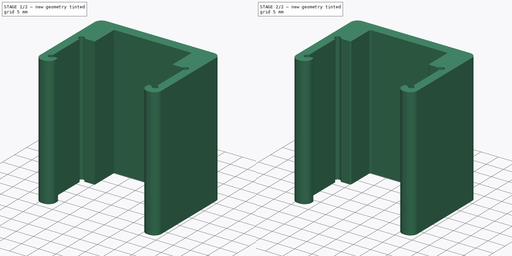
[diagram: build sequence overview — one tinted view per stage of 2, left to right]
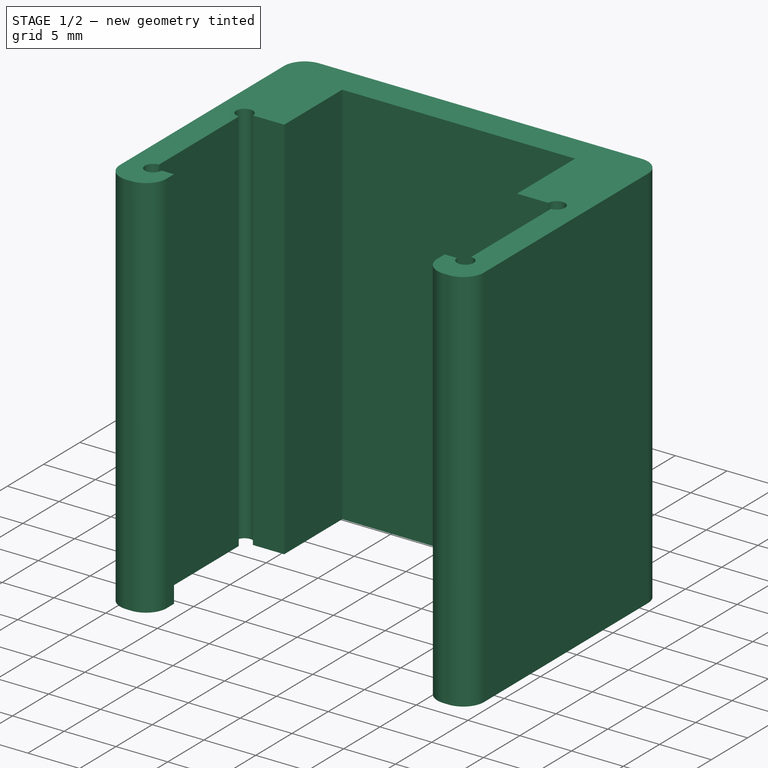
[diagram: stage 1 of 2 — iso view after this stage's code; geometry added in this stage tinted green]
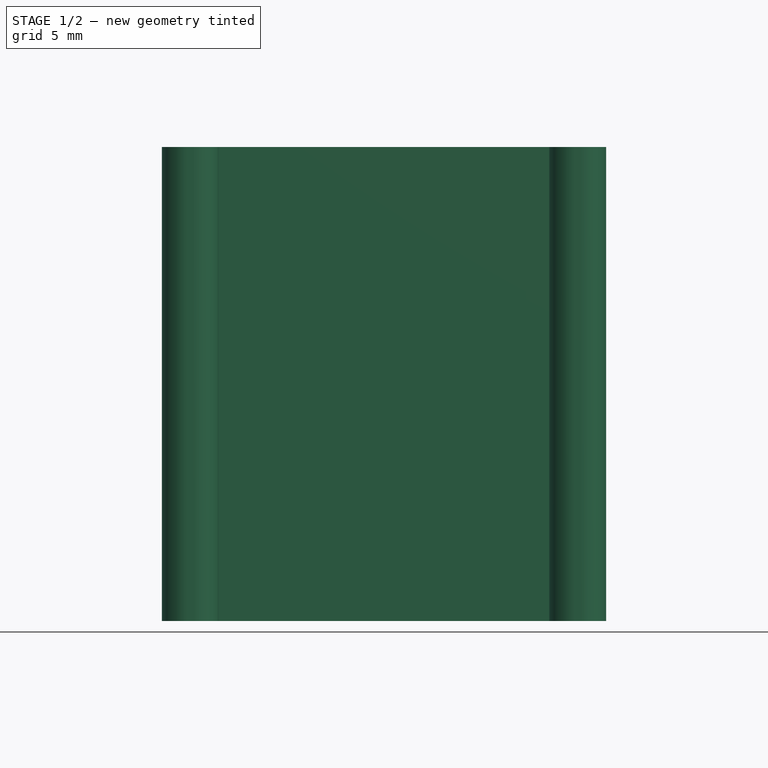
[diagram: stage 1 of 2 — front view after this stage's code; geometry added in this stage tinted green]
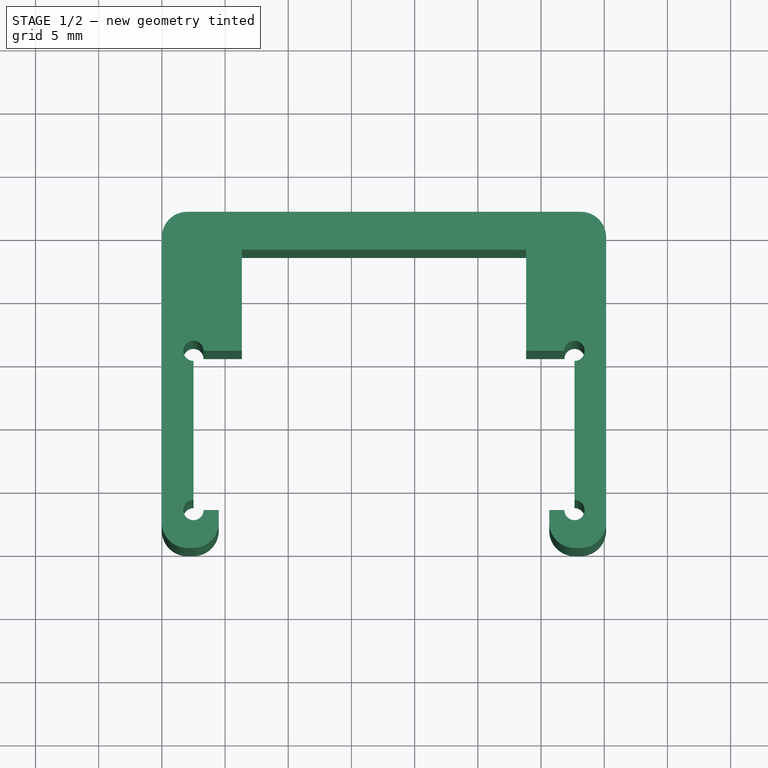
[diagram: stage 1 of 2 — top view after this stage's code; geometry added in this stage tinted green]
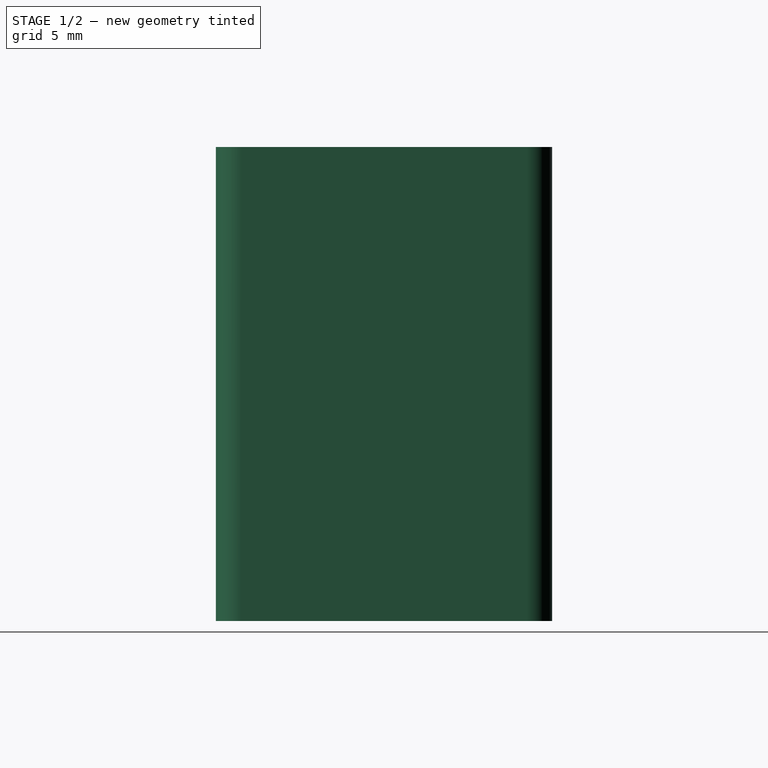
[diagram: stage 1 of 2 — right view after this stage's code; geometry added in this stage tinted green]
FCSTD DOCUMENT  (FreeCAD 0.18R4 (GitTag))
Label: clip
License: All rights reserved
LicenseURL: http://en.wikipedia.org/wiki/All_rights_reserved
objects: PartDesign::Fillet×2, Sketcher::SketchObject×1, PartDesign::Pad×1, PartDesign::Body×1, Spreadsheet::Sheet×1
note: 6 computed .brp shape members not serialized (recipe doc carries the construction recipe); baked Part::Feature solids carry a one-line shape summary decoded from their .brp

FEATURE [Sketcher::SketchObject] Sketch
  MapMode = 5
  Support = -> [XY_Plane]
  expr: Constraints[49] = Params.HEIGHT
  expr: Constraints[37] = Constraints.WALL + 0.5mm
  expr: Constraints.WALL = Params.WALL
  expr: Constraints[41] = 3.75mm + Params.GAP_XY / 2
  expr: Constraints[48] = 30mm + Params.GAP_XY
  expr: Constraints[43] = Params.WALL + 0.5mm
  expr: Constraints[36] = Constraints.WALL
  sketch-geometry (31):
    g0: LineSegment StartX=0 StartY=0 StartZ=0 EndX=4.5 EndY=0 EndZ=0
    g1: LineSegment StartX=4.5 StartY=0 StartZ=0 EndX=4.5 EndY=3 EndZ=0
    g2: LineSegment [constr] StartX=4.5 StartY=3 StartZ=0 EndX=2.5 EndY=3 EndZ=0
    g3: LineSegment [constr] StartX=2.5 StartY=3 StartZ=0 EndX=2.5 EndY=15.6 EndZ=0
    g4: LineSegment [constr] StartX=2.5 StartY=15.6 StartZ=0 EndX=6.325 EndY=15.6 EndZ=0
    g5: LineSegment StartX=6.325 StartY=15.6 StartZ=0 EndX=6.325 EndY=23.6 EndZ=0
    g6: LineSegment StartX=6.325 StartY=23.6 StartZ=0 EndX=28.825 EndY=23.6 EndZ=0
    g7: LineSegment StartX=28.825 StartY=23.6 StartZ=0 EndX=28.825 EndY=15.6 EndZ=0
    g8: LineSegment [constr] StartX=28.825 StartY=15.6 StartZ=0 EndX=32.65 EndY=15.6 EndZ=0
    g9: LineSegment [constr] StartX=32.65 StartY=15.6 StartZ=0 EndX=32.65 EndY=3 EndZ=0
    g10: LineSegment [constr] StartX=32.65 StartY=3 StartZ=0 EndX=30.65 EndY=3 EndZ=0
    g11: LineSegment StartX=30.65 StartY=3 StartZ=0 EndX=30.65 EndY=4e-16 EndZ=0
    g12: LineSegment StartX=30.65 StartY=4e-16 StartZ=0 EndX=35.15 EndY=4e-16 EndZ=0
    g13: LineSegment StartX=35.15 StartY=4e-16 StartZ=0 EndX=35.15 EndY=26.6 EndZ=0
    g14: LineSegment StartX=35.15 StartY=26.6 StartZ=0 EndX=0 EndY=26.6 EndZ=0
    g15: LineSegment StartX=0 StartY=26.6 StartZ=0 EndX=0 EndY=0 EndZ=0
    g16: LineSegment [constr] StartX=2.5 StartY=15.6 StartZ=0 EndX=0 EndY=15.6 EndZ=0
    g17: Circle [constr] CenterX=32.65 CenterY=15.6 CenterZ=0 NormalX=0 NormalY=0 NormalZ=1 AngleXU=0 Radius=0.8
    g18: Circle [constr] CenterX=32.65 CenterY=3 CenterZ=0 NormalX=0 NormalY=0 NormalZ=1 AngleXU=0 Radius=0.8
    g19: Circle [constr] CenterX=2.5 CenterY=15.6 CenterZ=0 NormalX=0 NormalY=0 NormalZ=1 AngleXU=0 Radius=0.8
    g20: Circle [constr] CenterX=2.5 CenterY=3 CenterZ=0 NormalX=0 NormalY=0 NormalZ=1 AngleXU=0 Radius=0.8
    g21: LineSegment StartX=28.825 StartY=15.6 StartZ=0 EndX=31.85 EndY=15.6 EndZ=0
    g22: LineSegment StartX=30.65 StartY=3 StartZ=0 EndX=31.85 EndY=3 EndZ=0
    g23: LineSegment StartX=6.325 StartY=15.6 StartZ=0 EndX=3.3 EndY=15.6 EndZ=0
    g24: LineSegment StartX=4.5 StartY=3 StartZ=0 EndX=3.3 EndY=3 EndZ=0
    g25: LineSegment StartX=2.5 StartY=14.8 StartZ=0 EndX=2.5 EndY=3.8 EndZ=0
    g26: LineSegment StartX=32.65 StartY=14.8 StartZ=0 EndX=32.65 EndY=3.8 EndZ=0
    g27: ArcOfCircle CenterX=32.65 CenterY=15.6 CenterZ=0 NormalX=0 NormalY=0 NormalZ=1 AngleXU=0 Radius=0.8 StartAngle=4.71239 EndAngle=9.42478
    g28: ArcOfCircle CenterX=32.65 CenterY=3 CenterZ=0 NormalX=0 NormalY=0 NormalZ=1 AngleXU=0 Radius=0.8 StartAngle=3.14159 EndAngle=7.85398
    g29: ArcOfCircle CenterX=2.5 CenterY=15.6 CenterZ=0 NormalX=0 NormalY=0 NormalZ=1 AngleXU=0 Radius=0.8 StartAngle=0 EndAngle=4.71239
    g30: ArcOfCircle CenterX=2.5 CenterY=3 CenterZ=0 NormalX=0 NormalY=0 NormalZ=1 AngleXU=0 Radius=0.8 StartAngle=1.5708 EndAngle=6.28319
  constraints (86):
    c: Horizontal(g0)
    c: Coincident(g0,g1)
    c: Vertical(g1)
    c: Coincident(g1,g2)
    c: Horizontal(g2)
    c: Coincident(g2,g3)
    c: Vertical(g3)
    c: Coincident(g3,g4)
    c: Coincident(g4,g5)
    c: Vertical(g5)
    c: Coincident(g5,g6)
    c: Horizontal(g6)
    c: Coincident(g6,g7)
    c: Vertical(g7)
    c: Coincident(g7,g8)
    c: Coincident(g8,g9)
    c: Vertical(g9)
    c: Coincident(g9,g10)
    c: Horizontal(g10)
    c: Coincident(g10,g11)
    c: Vertical(g11)
    c: Coincident(g11,g12)
    c: Horizontal(g12)
    c: Coincident(g12,g13)
    c: Vertical(g13)
    c: Coincident(g13,g14)
    c: Horizontal(g14)
    c: Coincident(g14,g15)
    c: Coincident(g15,g0)
    c: Coincident(g16,g3)
    c: PointOnObject(g16,g15)
    c: Horizontal(g16)
    c: DistanceX(g16,g16) = 2.5  'WALL'
    c: Horizontal(g4)
    c: Vertical(g15)
    c: Horizontal(g8)
    c: DistanceX(g8,g13) = 2.5
    c: DistanceY(g5,g14) = 3
    c: Equal(g7,g5)
    c: DistanceY(g5,g5) = 8
    c: Equal(g4,g8)
    c: DistanceX(g4,g4) = 3.825
    c: Equal(g1,g11)
    c: DistanceY(g1,g1) = 3
    c: Equal(g2,g10)
    c: DistanceX(g2,g2) = 2
    c: Equal(g3,g9)
    c: Coincident(g0,g-1)
    c: DistanceX(g3,g8) = 30.15
    c: DistanceY(g3,g3) = 12.6
    c: Coincident(g17,g8)
    c: Coincident(g18,g9)
    c: Coincident(g19,g3)
    c: Coincident(g20,g2)
    c: Radius(g19) = 0.8
    c: Equal(g19,g20)
    c: Equal(g17,g18)
    c: Equal(g17,g19)
    c: Coincident(g21,g7)
    c: PointOnObject(g21,g17)
    c: Horizontal(g21)
    c: Coincident(g22,g11)
    c: PointOnObject(g22,g18)
    c: Horizontal(g22)
    c: Coincident(g23,g5)
    c: PointOnObject(g23,g19)
    c: Horizontal(g23)
    c: Coincident(g24,g1)
    c: PointOnObject(g24,g20)
    c: Horizontal(g24)
    c: Vertical(g25)
    c: PointOnObject(g25,g3)
    c: Vertical(g26)
    c: Coincident(g27,g8)
    c: Coincident(g27,g26)
    c: Coincident(g27,g21)
    c: Coincident(g28,g9)
    c: Coincident(g28,g22)
    c: Coincident(g28,g26)
    c: Coincident(g29,g3)
    c: Coincident(g29,g25)
    c: Coincident(g29,g23)
    c: Coincident(g30,g2)
    c: Coincident(g30,g24)
    c: Coincident(g30,g25)
    c: PointOnObject(g26,g9)
FEATURE [PartDesign::Pad] Pad
  Length = 37.5
  Length2 = 100
  Profile = -> Sketch
  Type = 0
  expr: Length = Params.DEPTH
FEATURE [PartDesign::Fillet] Fillet  label="OuterFillets"
  Base = -> Pad [Edge11,Edge14,Edge17,Edge2,Edge5,Edge8]
  BaseFeature = -> Pad
  Radius = 2
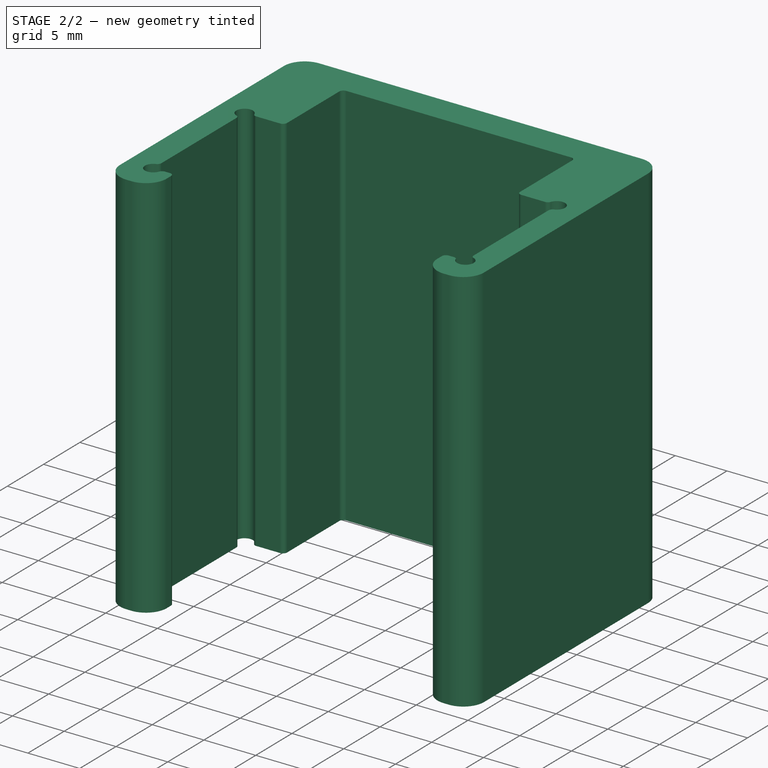
[diagram: stage 2 of 2 — iso view after this stage's code; geometry added in this stage tinted green]
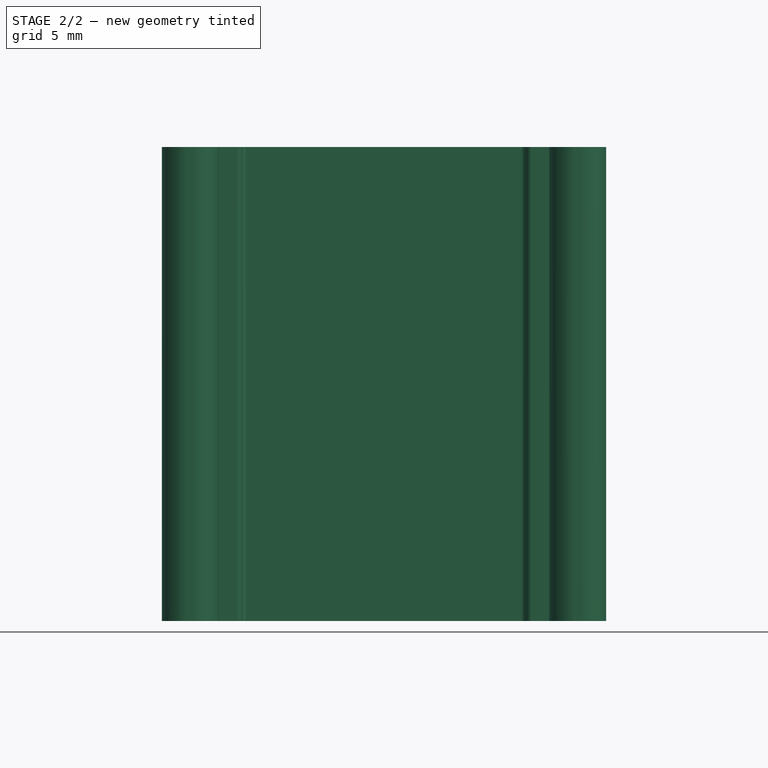
[diagram: stage 2 of 2 — front view after this stage's code; geometry added in this stage tinted green]
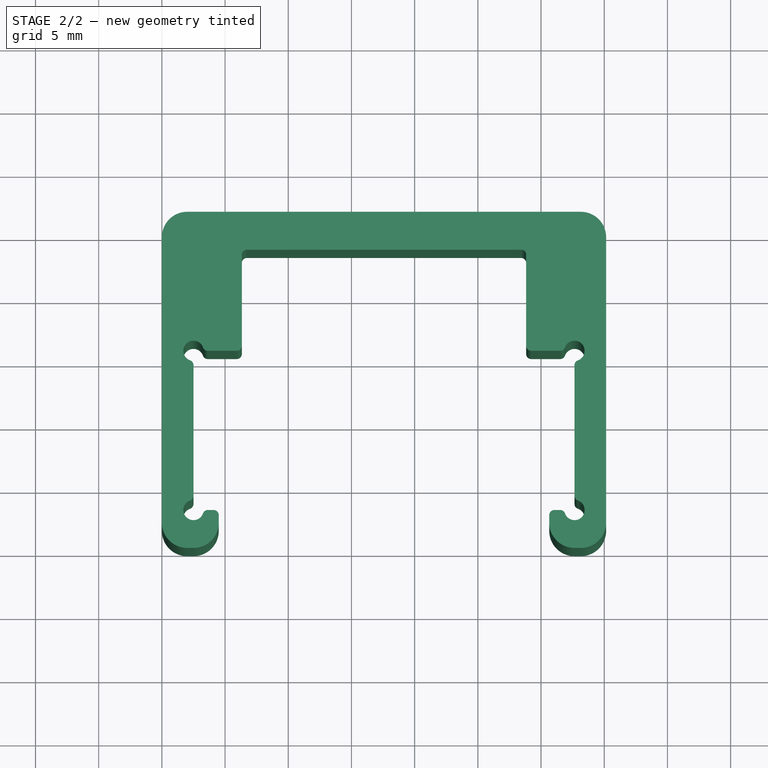
[diagram: stage 2 of 2 — top view after this stage's code; geometry added in this stage tinted green]
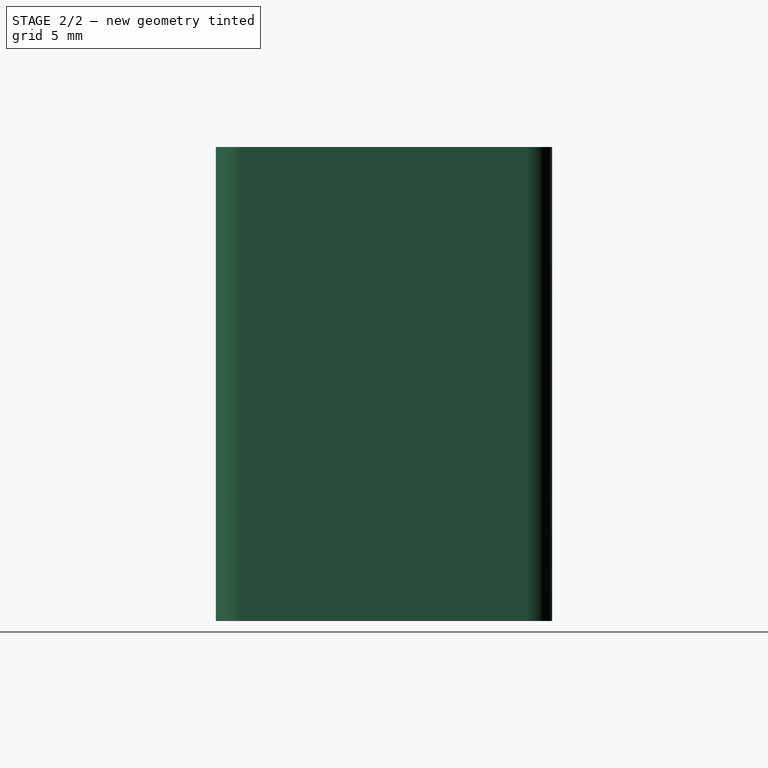
[diagram: stage 2 of 2 — right view after this stage's code; geometry added in this stage tinted green]
FEATURE [PartDesign::Fillet] Fillet001  label="InnerFillets"
  Base = -> Fillet [Edge70,Edge68,Edge66,Edge64,Edge77,Edge3,Edge72,Edge62,Edge74,Edge60,Edge78,Edge32,Edge58,Edge76]
  BaseFeature = -> Fillet
  Radius = 0.4
FEATURE [PartDesign::Body] Body
  Group = -> [Sketch,Pad,Fillet,Fillet001]
  Origin = -> Origin
  Tip = -> Fillet001
FEATURE [Spreadsheet::Sheet] Spreadsheet  label="Params"
  cells = A1=Key; B1=Value; C1=Description; A2=GAP_XY; B2(GAP_XY)==0.15mm; C2=Tolerancy in X-Y-direction.; A3=WALL; B3(WALL)==2.5mm; C3=Outer wall thickness.; A4=DEPTH; B4(DEPTH)==37.5mm; C4=Total depth.; A5=HEIGHT; B5(HEIGHT)==12.6mm; C5=Outer board to board distance.
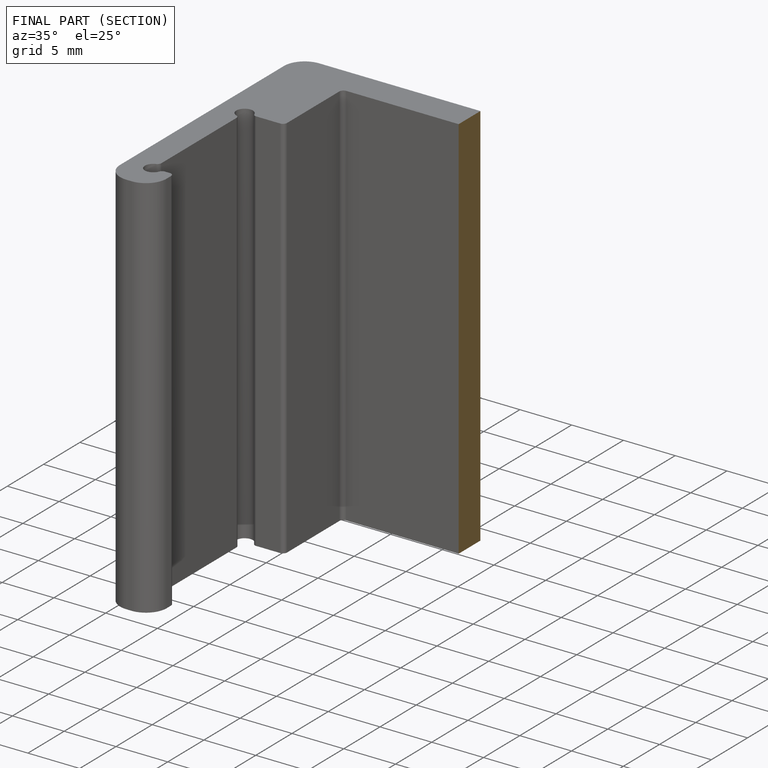
[diagram: finished part — half-section view (interior)]
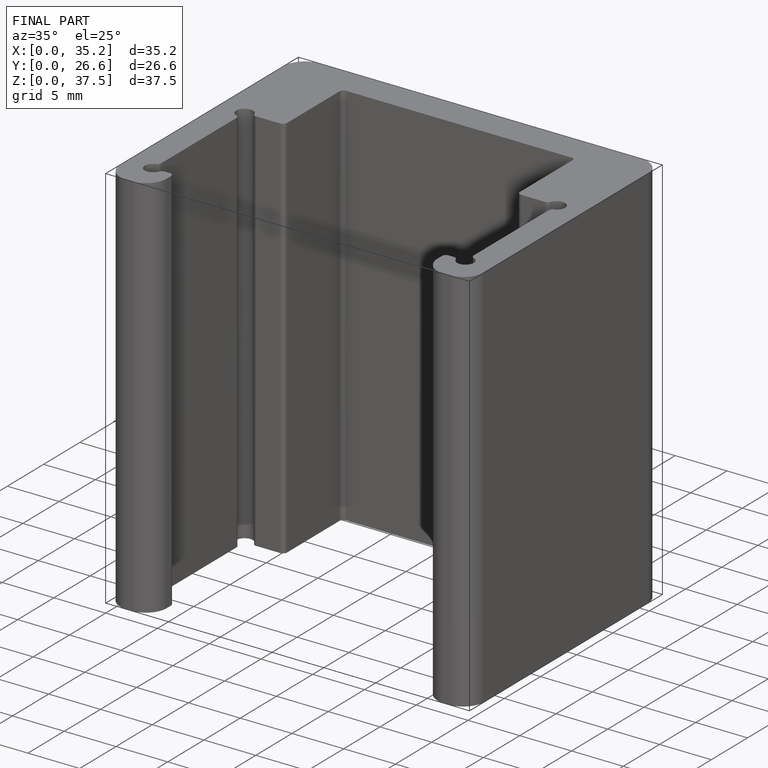
[diagram: finished part — iso view with bounding-box wireframe]
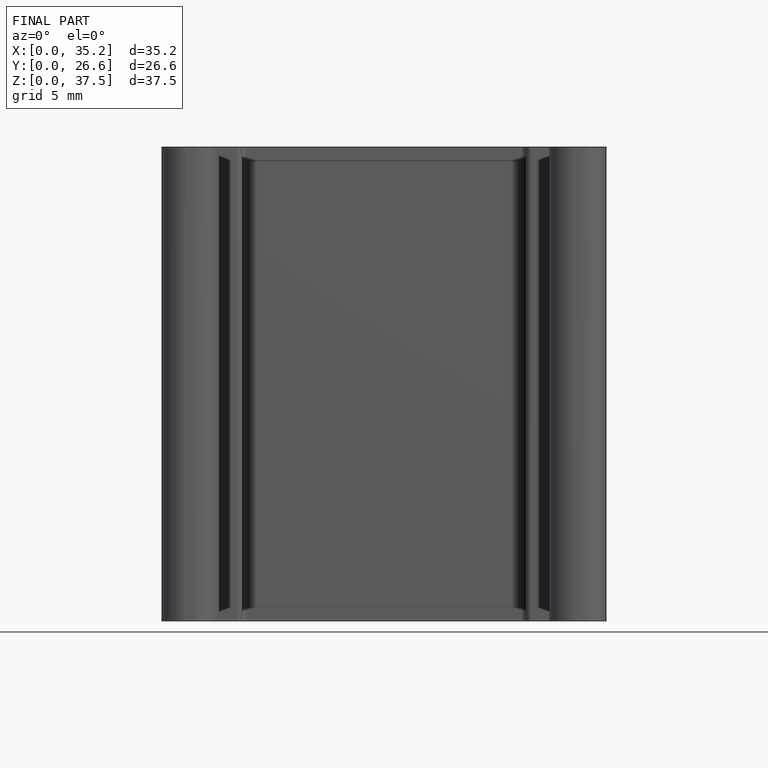
[diagram: finished part — front view with bounding-box wireframe]
